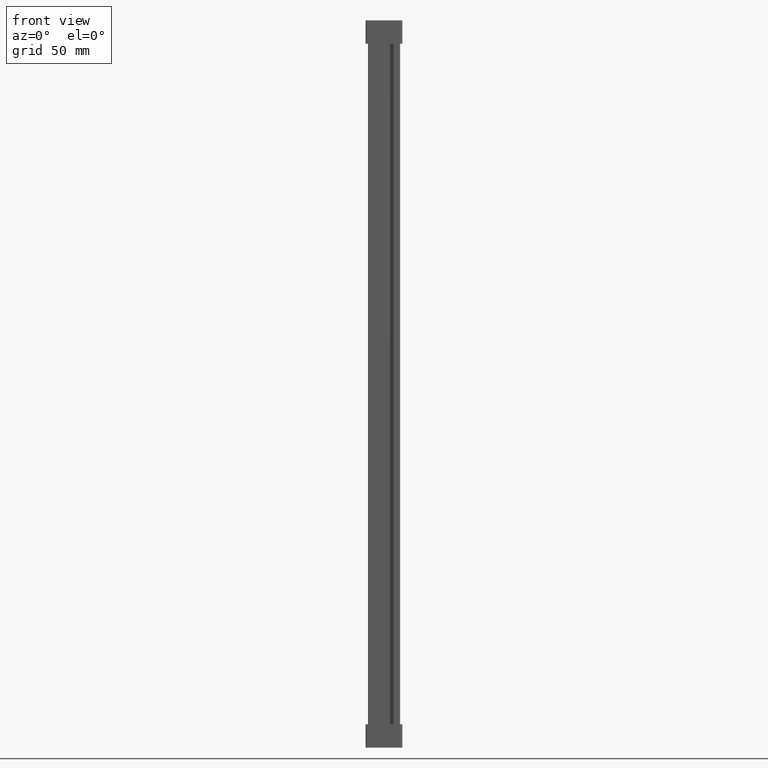
[diagram: clean part render]
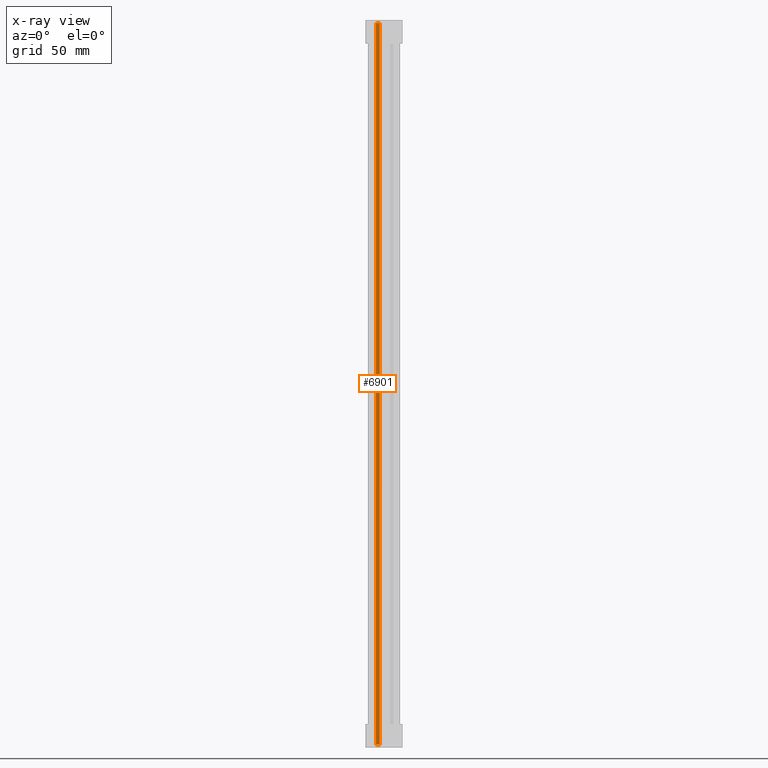
[diagram: x-ray — body ghosted, one internal face saturated and labeled with its STEP entity id]
A machine part, front view, then the same camera in x-ray: the body is ghosted and one INTERNAL B-rep face — a face not visible from any outside direction — is saturated and labeled: STEP entity #6901.
In plain terms, the highlighted planar face has unit normal (0, 1, 0).
Its self-contained STEP definition (entity closure, byte-faithful):
#1047 = EDGE_CURVE ( 'NONE', #11819, #11805, #1720, .T. ) ;
#1157 = EDGE_CURVE ( 'NONE', #11805, #11890, #2012, .T. ) ;
#1163 = EDGE_CURVE ( 'NONE', #11819, #11856, #2054, .T. ) ;
#1176 = EDGE_CURVE ( 'NONE', #11856, #11890, #2082, .T. ) ;
#1716 = DIRECTION ( 'NONE',  ( 1.000000000000000000, 0.0000000000000000000, -0.0000000000000000000 ) ) ;
#1717 = CARTESIAN_POINT ( 'NONE',  ( 6.525548534933072600, 5.673275106952147000, 217.8000000000571400 ) ) ;
#1720 = LINE ( 'NONE', #1717, #24200 ) ;
#2012 = LINE ( 'NONE', #2047, #24355 ) ;
#2047 = CARTESIAN_POINT ( 'NONE',  ( 4.549999999999911900, 5.673275106952147000, 220.2000000000000200 ) ) ;
#2048 = DIRECTION ( 'NONE',  ( -0.0000000000000000000, 0.0000000000000000000, -1.000000000000000000 ) ) ;
#2054 = LINE ( 'NONE', #2074, #24377 ) ;
#2055 = DIRECTION ( 'NONE',  ( -0.0000000000000000000, -0.0000000000000000000, -1.000000000000000000 ) ) ;
#2074 = CARTESIAN_POINT ( 'NONE',  ( 2.900000000000013700, 5.673275106952147000, 220.2000000000000200 ) ) ;
#2082 = LINE ( 'NONE', #2100, #24386 ) ;
#2086 = DIRECTION ( 'NONE',  ( 1.000000000000000000, -0.0000000000000000000, 4.965472477636011600E-013 ) ) ;
#2100 = CARTESIAN_POINT ( 'NONE',  ( 13.86600000010872900, 5.673275106952147000, -103.8000000000516800 ) ) ;
#4450 = PLANE ( 'NONE',  #32062 ) ;
#4484 = CARTESIAN_POINT ( 'NONE',  ( 6.525548534933072600, 5.673275106952147000, 220.2000000000000200 ) ) ;
#4505 = FACE_OUTER_BOUND ( 'NONE', #28532, .T. ) ;
#4509 = DIRECTION ( 'NONE',  ( 0.0000000000000000000, 1.000000000000000000, 0.0000000000000000000 ) ) ;
#4522 = DIRECTION ( 'NONE',  ( 0.0000000000000000000, -0.0000000000000000000, 1.000000000000000000 ) ) ;
#6901 = ADVANCED_FACE ( 'NONE', ( #4505 ), #4450, .F. ) ;
#10962 = ORIENTED_EDGE ( 'NONE', *, *, #1176, .T. ) ;
#11077 = ORIENTED_EDGE ( 'NONE', *, *, #1157, .F. ) ;
#11081 = ORIENTED_EDGE ( 'NONE', *, *, #1047, .F. ) ;
#11103 = ORIENTED_EDGE ( 'NONE', *, *, #1163, .T. ) ;
#11805 = VERTEX_POINT ( 'NONE', #16061 ) ;
#11819 = VERTEX_POINT ( 'NONE', #16177 ) ;
#11856 = VERTEX_POINT ( 'NONE', #16153 ) ;
#11890 = VERTEX_POINT ( 'NONE', #16136 ) ;
#16061 = CARTESIAN_POINT ( 'NONE',  ( 4.549999999999911900, 5.673275106952147000, 217.8000000000565400 ) ) ;
#16136 = CARTESIAN_POINT ( 'NONE',  ( 4.549999999999910100, 5.673275106952147000, -103.8000000000563100 ) ) ;
#16153 = CARTESIAN_POINT ( 'NONE',  ( 2.900000000000013700, 5.673275106952147000, -103.8000000000569300 ) ) ;
#16177 = CARTESIAN_POINT ( 'NONE',  ( 2.900000000000013700, 5.673275106952147000, 217.8000000000571100 ) ) ;
#24200 = VECTOR ( 'NONE', #1716, 1000.000000000000000 ) ;
#24355 = VECTOR ( 'NONE', #2048, 1000.000000000000000 ) ;
#24377 = VECTOR ( 'NONE', #2055, 1000.000000000000000 ) ;
#24386 = VECTOR ( 'NONE', #2086, 1000.000000000000000 ) ;
#28532 = EDGE_LOOP ( 'NONE', ( #11103, #10962, #11077, #11081 ) ) ;
#32062 = AXIS2_PLACEMENT_3D ( 'NONE', #4484, #4509, #4522 ) ;